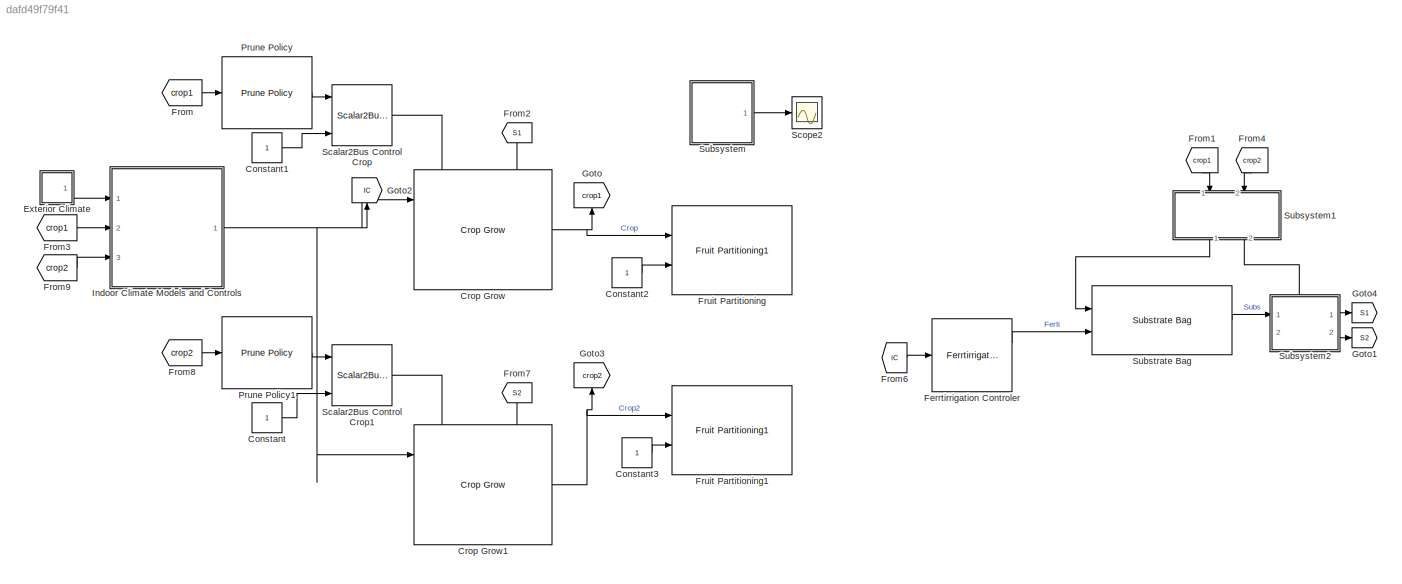
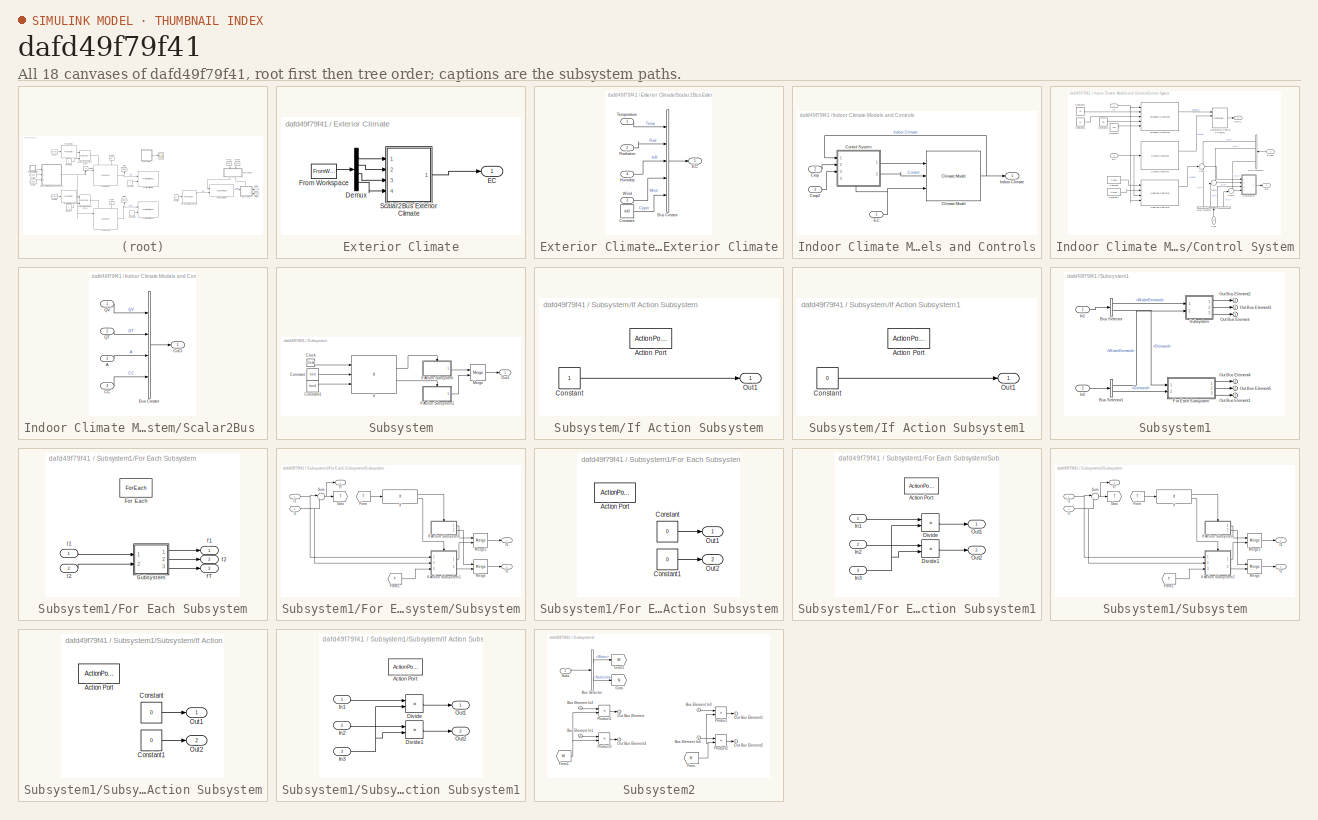
[diagram: thumbnail index - all 18 canvases of the model, root first then tree order]
MODEL slx_dafd49f79f41
KIND model
CONFIG AbsTol = auto
CONFIG EnableMultiTasking = off
CONFIG FixedStep = auto
CONFIG MaxStep = auto
CONFIG MinStep = auto
CONFIG RelTol = 1e-3
CONFIG SampleTimeConstraint = Unconstrained
CONFIG SolverName = ode23
CONFIG StartTime = 0.0
CONFIG StopTime = tspan(end)
BLOCK [Constant] Constant
BLOCK [Constant] Constant1
BLOCK [Constant] Constant2
BLOCK [Constant] Constant3
BLOCK [Reference] Crop Grow  REF=HORTISIM/Horticulture/Models/Crop Grow
  Ports = [3, 1]
  SourceBlock = HORTISIM/Horticulture/Models/Crop Grow
  SourceProductName = Horti Simulator
BLOCK [Reference] Crop Grow1  REF=HORTISIM/Horticulture/Models/Crop Grow
  Ports = [3, 1]
  SourceBlock = HORTISIM/Horticulture/Models/Crop Grow
  SourceProductName = Horti Simulator
BLOCK [SubSystem] Exterior Climate
  NameLocation = left
  Ports = [0, 1]
  RequestExecContextInheritance = off
BLOCK [Demux] Exterior Climate/Demux
  Ports = [1, 4]
BLOCK [Outport] Exterior Climate/EC
BLOCK [FromWorkspace] Exterior Climate/From Workspace
  VariableName = EC
BLOCK [SubSystem] Exterior Climate/Scalar2Bus Exterior Climate
  Ports = [4, 1]
  RequestExecContextInheritance = off
BLOCK [BusCreator] Exterior Climate/Scalar2Bus Exterior Climate/Bus Creator
  DisplayOption = bar
  InheritFromInputs = on
  Inputs = 5
  Ports = [5, 1]
BLOCK [Constant] Exterior Climate/Scalar2Bus Exterior Climate/Constant
  Value = 440
BLOCK [Outport] Exterior Climate/Scalar2Bus Exterior Climate/EC
BLOCK [Inport] Exterior Climate/Scalar2Bus Exterior Climate/Humidity
  Port = 4
BLOCK [Inport] Exterior Climate/Scalar2Bus Exterior Climate/Radiation
  Port = 2
BLOCK [Inport] Exterior Climate/Scalar2Bus Exterior Climate/Temperature
BLOCK [Inport] Exterior Climate/Scalar2Bus Exterior Climate/Wind
  Port = 3
BLOCK [Reference] Ferrtirrigation Controler  REF=HORTISIM/Horticulture/Controls/Ferrtirrigation
 Controler
  NameLocation = top
  Ports = [1, 2]
  SourceBlock = HORTISIM/Horticulture/Controls/Ferrtirrigation\n Controler
  SourceProductName = Horti Simulator
BLOCK [From] From
  GotoTag = crop1
BLOCK [From] From1
  GotoTag = crop1
  NameLocation = left
BLOCK [From] From2
  GotoTag = S1
  NameLocation = left
BLOCK [From] From3
  GotoTag = crop1
BLOCK [From] From4
  GotoTag = crop2
  NameLocation = left
BLOCK [From] From6
  GotoTag = IC
BLOCK [From] From7
  GotoTag = S2
  NameLocation = left
BLOCK [From] From8
  GotoTag = crop2
BLOCK [From] From9
  GotoTag = crop2
BLOCK [Reference] Fruit Partitioning  REF=HORTISIM/Horticulture/Models/Fruit Partitioning1
  Ports = [2, 1]
  SourceBlock = HORTISIM/Horticulture/Models/Fruit Partitioning1
  SourceProductName = Horti Simulator
BLOCK [Reference] Fruit Partitioning1  REF=HORTISIM/Horticulture/Models/Fruit Partitioning1
  Ports = [2, 1]
  SourceBlock = HORTISIM/Horticulture/Models/Fruit Partitioning1
  SourceProductName = Horti Simulator
BLOCK [Goto] Goto
  GotoTag = crop1
  NameLocation = right
BLOCK [Goto] Goto1
  GotoTag = S2
BLOCK [Goto] Goto2
  GotoTag = IC
  NameLocation = right
BLOCK [Goto] Goto3
  GotoTag = crop2
  NameLocation = right
BLOCK [Goto] Goto4
  GotoTag = S1
BLOCK [SubSystem] Indoor Climate Models and Controls
  Ports = [3, 1]
  RequestExecContextInheritance = off
BLOCK [Reference] Indoor Climate Models and Controls/Climate Model  REF=HORTISIM/Climate/Models/Climate Model
  Ports = [3, 1]
  SourceBlock = HORTISIM/Climate/Models/Climate Model
  SourceProductName = Horti Simulator
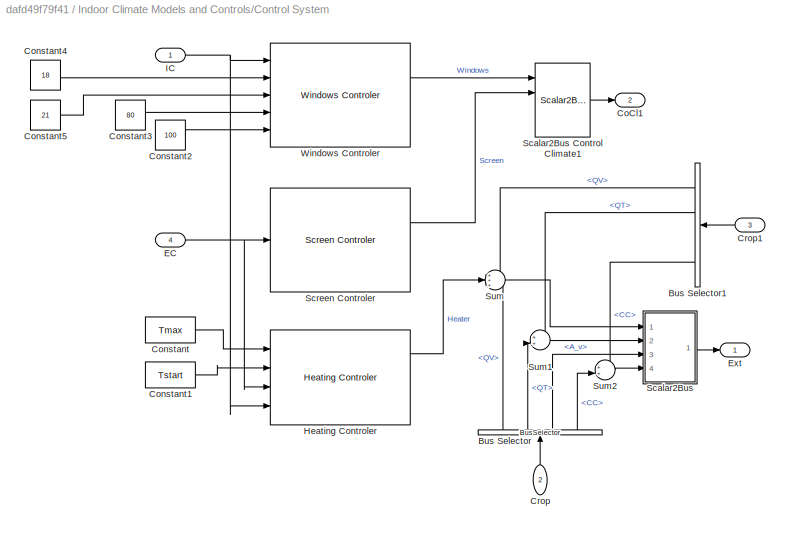
BLOCK [SubSystem] Indoor Climate Models and Controls/Control System
  NameLocation = top
  PortSchema = {"entries":[{"content":{"sides":[{"content":{"connectorIds":["In1","In2","In3"]},"type":"ConnectorPlacement.EquallySpacedRectSide","uuid":"7d0146e2-a53b-49ab-a7f4-04cd7ef00b9a"},{"content":{"connectorIds":["Out1","Out2"],"side":"RIGHT"},"type":"ConnectorPlacement.EquallySpacedRectSide","uuid":"fee587e2-4b5c-4140-8904-07609d427593"},{"content":{"connectorIds":[],"side":"TOP"},"type":"ConnectorPlace...<+408ch>
  Ports = [4, 2]
  RequestExecContextInheritance = off
BLOCK [BusSelector] Indoor Climate Models and Controls/Control System/Bus Selector
  NameLocation = right
  OutputSignals = HeatVars.QV,HeatVars.QT,A_v,CC
  Ports = [1, 4]
BLOCK [BusSelector] Indoor Climate Models and Controls/Control System/Bus Selector1
  NameLocation = top
  OutputSignals = HeatVars.QV,HeatVars.QT,A_v,CC
  Ports = [1, 4]
BLOCK [Outport] Indoor Climate Models and Controls/Control System/CoCl1
  Port = 2
BLOCK [Constant] Indoor Climate Models and Controls/Control System/Constant
  Value = Tmax
BLOCK [Constant] Indoor Climate Models and Controls/Control System/Constant1
  Value = Tstart
BLOCK [Constant] Indoor Climate Models and Controls/Control System/Constant2
  Value = 100
BLOCK [Constant] Indoor Climate Models and Controls/Control System/Constant3
  Value = 80
BLOCK [Constant] Indoor Climate Models and Controls/Control System/Constant4
  Value = 18
BLOCK [Constant] Indoor Climate Models and Controls/Control System/Constant5
  Value = 21
BLOCK [Inport] Indoor Climate Models and Controls/Control System/Crop
  NameLocation = right
  Port = 2
BLOCK [Inport] Indoor Climate Models and Controls/Control System/Crop1
  NameLocation = top
  Port = 3
BLOCK [Inport] Indoor Climate Models and Controls/Control System/EC
  Port = 4
BLOCK [Outport] Indoor Climate Models and Controls/Control System/Ext
BLOCK [Reference] Indoor Climate Models and Controls/Control System/Heating Controler  REF=HORTISIM/Climate/Controls/Heating Controler
  NameLocation = top
  Ports = [4, 3]
  SourceBlock = HORTISIM/Climate/Controls/Heating Controler
  SourceProductName = Horti Simulator
BLOCK [Inport] Indoor Climate Models and Controls/Control System/IC
BLOCK [SubSystem] Indoor Climate Models and Controls/Control System/Scalar2Bus 
  Ports = [4, 1]
  RequestExecContextInheritance = off
BLOCK [Inport] Indoor Climate Models and Controls/Control System/Scalar2Bus /A
  Port = 3
BLOCK [BusCreator] Indoor Climate Models and Controls/Control System/Scalar2Bus /Bus Creator
  DisplayOption = bar
  InheritFromInputs = on
  Inputs = 4
  Ports = [4, 1]
BLOCK [Inport] Indoor Climate Models and Controls/Control System/Scalar2Bus /CC
  Port = 4
BLOCK [Outport] Indoor Climate Models and Controls/Control System/Scalar2Bus /CoCl
BLOCK [Inport] Indoor Climate Models and Controls/Control System/Scalar2Bus /QT
  Port = 2
BLOCK [Inport] Indoor Climate Models and Controls/Control System/Scalar2Bus /QV
BLOCK [Reference] Indoor Climate Models and Controls/Control System/Scalar2Bus Control Climate1  REF=HORTISIM/Other 
Functions/Scalar2Bus 
Control Climate
  Ports = [4, 1]
  SourceBlock = HORTISIM/Other \nFunctions/Scalar2Bus \nControl Climate
  SourceProductName = Horti Simulator
  SourceType = SubSystem
BLOCK [Reference] Indoor Climate Models and Controls/Control System/Screen Controler  REF=HORTISIM/Climate/Controls/Screen Controler
  NameLocation = top
  Ports = [1, 2]
  SourceBlock = HORTISIM/Climate/Controls/Screen Controler
  SourceProductName = Horti Simulator
BLOCK [Sum] Indoor Climate Models and Controls/Control System/Sum
  Inputs = +++
  Ports = [3, 1]
BLOCK [Sum] Indoor Climate Models and Controls/Control System/Sum1
  Inputs = ++|
  Ports = [2, 1]
BLOCK [Sum] Indoor Climate Models and Controls/Control System/Sum2
  Inputs = ++|
  Ports = [2, 1]
BLOCK [Reference] Indoor Climate Models and Controls/Control System/Windows Controler  REF=HORTISIM/Climate/Controls/Windows Controler
  NameLocation = top
  Ports = [5, 2]
  SourceBlock = HORTISIM/Climate/Controls/Windows Controler
  SourceProductName = Horti Simulator
BLOCK [Inport] Indoor Climate Models and Controls/Crop
  Port = 2
BLOCK [Inport] Indoor Climate Models and Controls/Crop2
  Port = 3
BLOCK [Inport] Indoor Climate Models and Controls/EC
BLOCK [Outport] Indoor Climate Models and Controls/Indoor Climate
BLOCK [Reference] Prune Policy  REF=HORTISIM/Horticulture/Controls/Prune
Policy
  Ports = [1, 1]
  SourceBlock = HORTISIM/Horticulture/Controls/Prune\nPolicy
  SourceProductName = Horti Simulator
BLOCK [Reference] Prune Policy1  REF=HORTISIM/Horticulture/Controls/Prune
Policy
  Ports = [1, 1]
  SourceBlock = HORTISIM/Horticulture/Controls/Prune\nPolicy
  SourceProductName = Horti Simulator
BLOCK [Reference] Scalar2Bus Control Crop  REF=HORTISIM/Other 
Functions/Scalar2Bus
Control Crop
  Ports = [4, 1]
  SourceBlock = HORTISIM/Other \nFunctions/Scalar2Bus\nControl Crop
  SourceProductName = Horti Simulator
  SourceType = SubSystem
BLOCK [Reference] Scalar2Bus Control Crop1  REF=HORTISIM/Other 
Functions/Scalar2Bus
Control Crop
  Ports = [4, 1]
  SourceBlock = HORTISIM/Other \nFunctions/Scalar2Bus\nControl Crop
  SourceProductName = Horti Simulator
  SourceType = SubSystem
BLOCK [Scope] Scope2
  Floating = off
  NumInputPorts = 1
  Ports = [1]
  ScopeSpecificationString = Simulink.scopes.TimeScopeBlockCfg('CurrentConfiguration', extmgr.ConfigurationSet(extmgr.Configuration('Core','General UI',true),extmgr.Configuration('Core','Source UI',true),extmgr.Configuration('Sources','WiredSimulink',true,'DataLoggingVariableName','ScopeData1'),extmgr.Configuration('Visuals','Time Domain',true,'SerializedDisplays',{struct('MinYLimReal','-0.125','MaxYLimReal','1.125','YLabelRe...<+1385ch>
BLOCK [Reference] Substrate Bag  REF=HORTISIM/Horticulture/Models/Substrate Bag
  Ports = [2, 1]
  SourceBlock = HORTISIM/Horticulture/Models/Substrate Bag
  SourceProductName = Horti Simulator
BLOCK [SubSystem] Subsystem
  Ports = [0, 1]
  RequestExecContextInheritance = off
BLOCK [Clock] Subsystem/Clock
BLOCK [Constant] Subsystem/Constant
  Value = tinit
BLOCK [Constant] Subsystem/Constant1
  Value = tend
BLOCK [If] Subsystem/If
  IfExpression = (u1>u2)&(u1<u3)
  NumInputs = 3
  Ports = [3, 2]
BLOCK [SubSystem] Subsystem/If Action Subsystem
  Ports = [0, 1, 0, 0, 0, 0, 0, 1]
  RequestExecContextInheritance = off
  TreatAsAtomicUnit = on
BLOCK [ActionPort] Subsystem/If Action Subsystem/Action Port
  ActionPortLabel = if((u1>u2)&(u1<u3))
BLOCK [Constant] Subsystem/If Action Subsystem/Constant
BLOCK [Outport] Subsystem/If Action Subsystem/Out1
BLOCK [SubSystem] Subsystem/If Action Subsystem1
  Ports = [0, 1, 0, 0, 0, 0, 0, 1]
  RequestExecContextInheritance = off
  TreatAsAtomicUnit = on
BLOCK [ActionPort] Subsystem/If Action Subsystem1/Action Port
  ActionPortLabel = else
BLOCK [Constant] Subsystem/If Action Subsystem1/Constant
  Value = 0
BLOCK [Outport] Subsystem/If Action Subsystem1/Out1
BLOCK [Merge] Subsystem/Merge
  Ports = [2, 1]
BLOCK [Outport] Subsystem/Out1
BLOCK [SubSystem] Subsystem1
  NameLocation = left
  Ports = [2, 2]
  RequestExecContextInheritance = off
BLOCK [BusSelector] Subsystem1/Bus Selector
  OutputSignals = Water.WaterFlows.WaterDemand,Nutrients.Demand
  Ports = [1, 2]
BLOCK [BusSelector] Subsystem1/Bus Selector1
  OutputSignals = Water.WaterFlows.WaterDemand,Nutrients.Demand
  Ports = [1, 2]
BLOCK [SubSystem] Subsystem1/For Each Subsystem
  Ports = [2, 3]
  RequestExecContextInheritance = off
  TreatAsAtomicUnit = on
BLOCK [ForEach] Subsystem1/For Each Subsystem/For Each
  DisableCoverage = on
  Ports = []
BLOCK [Inport] Subsystem1/For Each Subsystem/I1
  Partition = on
  PartitionDimension = 1
  PartitionOffset = 0
  PartitionWidth = 1
BLOCK [Inport] Subsystem1/For Each Subsystem/I2
  Partition = on
  PartitionDimension = 1
  PartitionOffset = 0
  PartitionWidth = 1
  Port = 2
BLOCK [SubSystem] Subsystem1/For Each Subsystem/Subsystem
  Ports = [2, 3]
  RequestExecContextInheritance = off
BLOCK [From] Subsystem1/For Each Subsystem/Subsystem/From
  GotoTag = T
BLOCK [From] Subsystem1/For Each Subsystem/Subsystem/From1
  GotoTag = T
BLOCK [Goto] Subsystem1/For Each Subsystem/Subsystem/Goto
  GotoTag = T
BLOCK [Inport] Subsystem1/For Each Subsystem/Subsystem/I1
BLOCK [Inport] Subsystem1/For Each Subsystem/Subsystem/I2
  Port = 2
BLOCK [If] Subsystem1/For Each Subsystem/Subsystem/If
  IfExpression = u1 == 0
  Ports = [1, 2]
BLOCK [SubSystem] Subsystem1/For Each Subsystem/Subsystem/If Action Subsystem
  Ports = [0, 2, 0, 0, 0, 0, 0, 1]
  RequestExecContextInheritance = off
  TreatAsAtomicUnit = on
BLOCK [ActionPort] Subsystem1/For Each Subsystem/Subsystem/If Action Subsystem/Action Port
  ActionPortLabel = if(u1 == 0)
BLOCK [Constant] Subsystem1/For Each Subsystem/Subsystem/If Action Subsystem/Constant
  Value = 0
BLOCK [Constant] Subsystem1/For Each Subsystem/Subsystem/If Action Subsystem/Constant1
  Value = 0
BLOCK [Outport] Subsystem1/For Each Subsystem/Subsystem/If Action Subsystem/Out1
BLOCK [Outport] Subsystem1/For Each Subsystem/Subsystem/If Action Subsystem/Out2
  Port = 2
BLOCK [SubSystem] Subsystem1/For Each Subsystem/Subsystem/If Action Subsystem1
  Ports = [3, 2, 0, 0, 0, 0, 0, 1]
  RequestExecContextInheritance = off
  TreatAsAtomicUnit = on
BLOCK [ActionPort] Subsystem1/For Each Subsystem/Subsystem/If Action Subsystem1/Action Port
  ActionPortLabel = else
BLOCK [Product] Subsystem1/For Each Subsystem/Subsystem/If Action Subsystem1/Divide
  Inputs = */
  Ports = [2, 1]
BLOCK [Product] Subsystem1/For Each Subsystem/Subsystem/If Action Subsystem1/Divide1
  Inputs = */
  Ports = [2, 1]
BLOCK [Inport] Subsystem1/For Each Subsystem/Subsystem/If Action Subsystem1/In1
BLOCK [Inport] Subsystem1/For Each Subsystem/Subsystem/If Action Subsystem1/In2
  Port = 2
BLOCK [Inport] Subsystem1/For Each Subsystem/Subsystem/If Action Subsystem1/In3
  Port = 3
BLOCK [Outport] Subsystem1/For Each Subsystem/Subsystem/If Action Subsystem1/Out1
BLOCK [Outport] Subsystem1/For Each Subsystem/Subsystem/If Action Subsystem1/Out2
  Port = 2
BLOCK [Merge] Subsystem1/For Each Subsystem/Subsystem/Merge
  Ports = [2, 1]
BLOCK [Merge] Subsystem1/For Each Subsystem/Subsystem/Merge1
  Ports = [2, 1]
BLOCK [Sum] Subsystem1/For Each Subsystem/Subsystem/Sum
  Inputs = |++
  Ports = [2, 1]
BLOCK [Outport] Subsystem1/For Each Subsystem/Subsystem/f1
BLOCK [Outport] Subsystem1/For Each Subsystem/Subsystem/f2
  Port = 2
BLOCK [Outport] Subsystem1/For Each Subsystem/Subsystem/fT
  Port = 3
BLOCK [Outport] Subsystem1/For Each Subsystem/f1
  ConcatenationDimension = 1
BLOCK [Outport] Subsystem1/For Each Subsystem/f2
  ConcatenationDimension = 1
  Port = 2
BLOCK [Outport] Subsystem1/For Each Subsystem/fT
  ConcatenationDimension = 1
  Port = 3
BLOCK [Inport] Subsystem1/In1
BLOCK [Inport] Subsystem1/In2
  Port = 2
BLOCK [Outport] Subsystem1/Out Bus Element
BLOCK [Outport] Subsystem1/Out Bus Element1
BLOCK [Outport] Subsystem1/Out Bus Element2
  Port = 2
BLOCK [Outport] Subsystem1/Out Bus Element3
  Port = 2
BLOCK [Outport] Subsystem1/Out Bus Element4
  Port = 2
BLOCK [Outport] Subsystem1/Out Bus Element5
  Port = 2
BLOCK [SubSystem] Subsystem1/Subsystem
  Ports = [2, 3]
  RequestExecContextInheritance = off
BLOCK [From] Subsystem1/Subsystem/From
  GotoTag = T
BLOCK [From] Subsystem1/Subsystem/From1
  GotoTag = T
BLOCK [Goto] Subsystem1/Subsystem/Goto
  GotoTag = T
BLOCK [Inport] Subsystem1/Subsystem/I1
BLOCK [Inport] Subsystem1/Subsystem/I2
  Port = 2
BLOCK [If] Subsystem1/Subsystem/If
  IfExpression = u1 == 0
  Ports = [1, 2]
BLOCK [SubSystem] Subsystem1/Subsystem/If Action Subsystem
  Ports = [0, 2, 0, 0, 0, 0, 0, 1]
  RequestExecContextInheritance = off
  TreatAsAtomicUnit = on
BLOCK [ActionPort] Subsystem1/Subsystem/If Action Subsystem/Action Port
  ActionPortLabel = if(u1 == 0)
BLOCK [Constant] Subsystem1/Subsystem/If Action Subsystem/Constant
  Value = 0
BLOCK [Constant] Subsystem1/Subsystem/If Action Subsystem/Constant1
  Value = 0
BLOCK [Outport] Subsystem1/Subsystem/If Action Subsystem/Out1
BLOCK [Outport] Subsystem1/Subsystem/If Action Subsystem/Out2
  Port = 2
BLOCK [SubSystem] Subsystem1/Subsystem/If Action Subsystem1
  Ports = [3, 2, 0, 0, 0, 0, 0, 1]
  RequestExecContextInheritance = off
  TreatAsAtomicUnit = on
BLOCK [ActionPort] Subsystem1/Subsystem/If Action Subsystem1/Action Port
  ActionPortLabel = else
BLOCK [Product] Subsystem1/Subsystem/If Action Subsystem1/Divide
  Inputs = */
  Ports = [2, 1]
BLOCK [Product] Subsystem1/Subsystem/If Action Subsystem1/Divide1
  Inputs = */
  Ports = [2, 1]
BLOCK [Inport] Subsystem1/Subsystem/If Action Subsystem1/In1
BLOCK [Inport] Subsystem1/Subsystem/If Action Subsystem1/In2
  Port = 2
BLOCK [Inport] Subsystem1/Subsystem/If Action Subsystem1/In3
  Port = 3
BLOCK [Outport] Subsystem1/Subsystem/If Action Subsystem1/Out1
BLOCK [Outport] Subsystem1/Subsystem/If Action Subsystem1/Out2
  Port = 2
BLOCK [Merge] Subsystem1/Subsystem/Merge
  Ports = [2, 1]
BLOCK [Merge] Subsystem1/Subsystem/Merge1
  Ports = [2, 1]
BLOCK [Sum] Subsystem1/Subsystem/Sum
  Inputs = |++
  Ports = [2, 1]
BLOCK [Outport] Subsystem1/Subsystem/f1
BLOCK [Outport] Subsystem1/Subsystem/f2
  Port = 2
BLOCK [Outport] Subsystem1/Subsystem/fT
  Port = 3
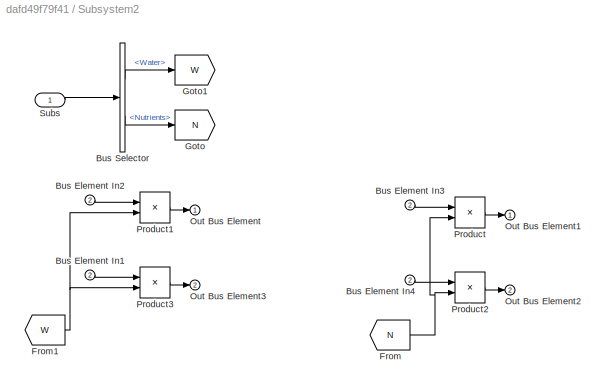
BLOCK [SubSystem] Subsystem2
  PortSchema = {"entries":[{"content":{"sides":[{"content":{"connectorIds":["In1"]},"type":"ConnectorPlacement.EquallySpacedRectSide","uuid":"526c2ba0-7984-4a67-b75e-815cf79b4473"},{"content":{"connectorIds":["Out1","Out2"],"side":"RIGHT"},"type":"ConnectorPlacement.EquallySpacedRectSide","uuid":"1f428ce7-4be7-4b4c-9b6b-ebbf12a2ebe7"},{"content":{"connectorIds":["In2"],"side":"TOP"},"type":"ConnectorPlacement.Eq...<+252ch>
  Ports = [2, 2]
  RequestExecContextInheritance = off
BLOCK [Inport] Subsystem2/Bus Element In1
  Port = 2
BLOCK [Inport] Subsystem2/Bus Element In2
  Port = 2
BLOCK [Inport] Subsystem2/Bus Element In3
  Port = 2
BLOCK [Inport] Subsystem2/Bus Element In4
  Port = 2
BLOCK [BusSelector] Subsystem2/Bus Selector
  OutputSignals = Uptake.Water,Uptake.Nutrients
  Ports = [1, 2]
BLOCK [From] Subsystem2/From
  GotoTag = N
BLOCK [From] Subsystem2/From1
  GotoTag = W
BLOCK [Goto] Subsystem2/Goto
  GotoTag = N
BLOCK [Goto] Subsystem2/Goto1
  GotoTag = W
BLOCK [Outport] Subsystem2/Out Bus Element
BLOCK [Outport] Subsystem2/Out Bus Element1
BLOCK [Outport] Subsystem2/Out Bus Element2
  Port = 2
BLOCK [Outport] Subsystem2/Out Bus Element3
  Port = 2
BLOCK [Product] Subsystem2/Product
  Ports = [2, 1]
BLOCK [Product] Subsystem2/Product1
  Ports = [2, 1]
BLOCK [Product] Subsystem2/Product2
  Ports = [2, 1]
BLOCK [Product] Subsystem2/Product3
  Ports = [2, 1]
BLOCK [Inport] Subsystem2/Subs
LINE Constant1:1 -> Scalar2Bus Control Crop:4
LINE Constant2:1 -> Fruit Partitioning:2
LINE Constant3:1 -> Fruit Partitioning1:2
LINE Constant:1 -> Scalar2Bus Control Crop1:4
NET Crop Grow1:1 -> Fruit Partitioning1:1, Goto3:1
NET Crop Grow:1 -> Fruit Partitioning:1, Goto:1
LINE Exterior Climate/Demux:1 -> Exterior Climate/Scalar2Bus Exterior Climate:1
LINE Exterior Climate/Demux:2 -> Exterior Climate/Scalar2Bus Exterior Climate:2
LINE Exterior Climate/Demux:3 -> Exterior Climate/Scalar2Bus Exterior Climate:3
LINE Exterior Climate/Demux:4 -> Exterior Climate/Scalar2Bus Exterior Climate:4
LINE Exterior Climate/From Workspace:1 -> Exterior Climate/Demux:1
LINE Exterior Climate/Scalar2Bus Exterior Climate/Bus Creator:1 -> Exterior Climate/Scalar2Bus Exterior Climate/EC:1
LINE Exterior Climate/Scalar2Bus Exterior Climate/Constant:1 -> Exterior Climate/Scalar2Bus Exterior Climate/Bus Creator:5
LINE Exterior Climate/Scalar2Bus Exterior Climate/Humidity:1 -> Exterior Climate/Scalar2Bus Exterior Climate/Bus Creator:3
LINE Exterior Climate/Scalar2Bus Exterior Climate/Radiation:1 -> Exterior Climate/Scalar2Bus Exterior Climate/Bus Creator:2
LINE Exterior Climate/Scalar2Bus Exterior Climate/Temperature:1 -> Exterior Climate/Scalar2Bus Exterior Climate/Bus Creator:1
LINE Exterior Climate/Scalar2Bus Exterior Climate/Wind:1 -> Exterior Climate/Scalar2Bus Exterior Climate/Bus Creator:4
LINE Exterior Climate/Scalar2Bus Exterior Climate:1 -> Exterior Climate/EC:1
LINE Exterior Climate:1 -> Indoor Climate Models and Controls:1
LINE Ferrtirrigation Controler:1 -> Substrate Bag:2
LINE From1:1 -> Subsystem1:1
LINE From2:1 -> Crop Grow:3
LINE From3:1 -> Indoor Climate Models and Controls:2
LINE From4:1 -> Subsystem1:2
LINE From6:1 -> Ferrtirrigation Controler:1
LINE From7:1 -> Crop Grow1:3
LINE From8:1 -> Prune Policy1:1
LINE From9:1 -> Indoor Climate Models and Controls:3
LINE From:1 -> Prune Policy:1
NET Indoor Climate Models and Controls/Climate Model:1 -> Indoor Climate Models and Controls/Control System:1, Indoor Climate Models and Controls/Indoor Climate:1
LINE Indoor Climate Models and Controls/Control System/Bus Selector1:1 -> Indoor Climate Models and Controls/Control System/Sum:1
LINE Indoor Climate Models and Controls/Control System/Bus Selector1:2 -> Indoor Climate Models and Controls/Control System/Sum1:1
LINE Indoor Climate Models and Controls/Control System/Bus Selector1:4 -> Indoor Climate Models and Controls/Control System/Sum2:1
LINE Indoor Climate Models and Controls/Control System/Bus Selector:1 -> Indoor Climate Models and Controls/Control System/Sum:3
LINE Indoor Climate Models and Controls/Control System/Bus Selector:2 -> Indoor Climate Models and Controls/Control System/Sum1:2
LINE Indoor Climate Models and Controls/Control System/Bus Selector:3 -> Indoor Climate Models and Controls/Control System/Scalar2Bus :3
LINE Indoor Climate Models and Controls/Control System/Bus Selector:4 -> Indoor Climate Models and Controls/Control System/Sum2:2
LINE Indoor Climate Models and Controls/Control System/Constant1:1 -> Indoor Climate Models and Controls/Control System/Heating Controler:2
LINE Indoor Climate Models and Controls/Control System/Constant2:1 -> Indoor Climate Models and Controls/Control System/Windows Controler:5
LINE Indoor Climate Models and Controls/Control System/Constant3:1 -> Indoor Climate Models and Controls/Control System/Windows Controler:4
LINE Indoor Climate Models and Controls/Control System/Constant4:1 -> Indoor Climate Models and Controls/Control System/Windows Controler:2
LINE Indoor Climate Models and Controls/Control System/Constant5:1 -> Indoor Climate Models and Controls/Control System/Windows Controler:3
LINE Indoor Climate Models and Controls/Control System/Constant:1 -> Indoor Climate Models and Controls/Control System/Heating Controler:1
LINE Indoor Climate Models and Controls/Control System/Crop1:1 -> Indoor Climate Models and Controls/Control System/Bus Selector1:1
LINE Indoor Climate Models and Controls/Control System/Crop:1 -> Indoor Climate Models and Controls/Control System/Bus Selector:1
NET Indoor Climate Models and Controls/Control System/EC:1 -> Indoor Climate Models and Controls/Control System/Heating Controler:3, Indoor Climate Models and Controls/Control System/Screen Controler:1
LINE Indoor Climate Models and Controls/Control System/Heating Controler:1 -> Indoor Climate Models and Controls/Control System/Sum:2
NET Indoor Climate Models and Controls/Control System/IC:1 -> Indoor Climate Models and Controls/Control System/Heating Controler:4, Indoor Climate Models and Controls/Control System/Windows Controler:1
LINE Indoor Climate Models and Controls/Control System/Scalar2Bus /A:1 -> Indoor Climate Models and Controls/Control System/Scalar2Bus /Bus Creator:3
LINE Indoor Climate Models and Controls/Control System/Scalar2Bus /Bus Creator:1 -> Indoor Climate Models and Controls/Control System/Scalar2Bus /CoCl:1
LINE Indoor Climate Models and Controls/Control System/Scalar2Bus /CC:1 -> Indoor Climate Models and Controls/Control System/Scalar2Bus /Bus Creator:4
LINE Indoor Climate Models and Controls/Control System/Scalar2Bus /QT:1 -> Indoor Climate Models and Controls/Control System/Scalar2Bus /Bus Creator:2
LINE Indoor Climate Models and Controls/Control System/Scalar2Bus /QV:1 -> Indoor Climate Models and Controls/Control System/Scalar2Bus /Bus Creator:1
LINE Indoor Climate Models and Controls/Control System/Scalar2Bus :1 -> Indoor Climate Models and Controls/Control System/Ext:1
LINE Indoor Climate Models and Controls/Control System/Scalar2Bus Control Climate1:1 -> Indoor Climate Models and Controls/Control System/CoCl1:1
LINE Indoor Climate Models and Controls/Control System/Screen Controler:1 -> Indoor Climate Models and Controls/Control System/Scalar2Bus Control Climate1:2
LINE Indoor Climate Models and Controls/Control System/Sum1:1 -> Indoor Climate Models and Controls/Control System/Scalar2Bus :2
LINE Indoor Climate Models and Controls/Control System/Sum2:1 -> Indoor Climate Models and Controls/Control System/Scalar2Bus :4
LINE Indoor Climate Models and Controls/Control System/Sum:1 -> Indoor Climate Models and Controls/Control System/Scalar2Bus :1
LINE Indoor Climate Models and Controls/Control System/Windows Controler:1 -> Indoor Climate Models and Controls/Control System/Scalar2Bus Control Climate1:1
LINE Indoor Climate Models and Controls/Control System:1 -> Indoor Climate Models and Controls/Climate Model:1
LINE Indoor Climate Models and Controls/Control System:2 -> Indoor Climate Models and Controls/Climate Model:2
LINE Indoor Climate Models and Controls/Crop2:1 -> Indoor Climate Models and Controls/Control System:3
LINE Indoor Climate Models and Controls/Crop:1 -> Indoor Climate Models and Controls/Control System:2
NET Indoor Climate Models and Controls/EC:1 -> Indoor Climate Models and Controls/Climate Model:3, Indoor Climate Models and Controls/Control System:4
NET Indoor Climate Models and Controls:1 -> Crop Grow1:1, Crop Grow:1, Goto2:1
LINE Prune Policy1:1 -> Scalar2Bus Control Crop1:1
LINE Prune Policy:1 -> Scalar2Bus Control Crop:1
LINE Scalar2Bus Control Crop1:1 -> Crop Grow1:2
LINE Scalar2Bus Control Crop:1 -> Crop Grow:2
LINE Substrate Bag:1 -> Subsystem2:1
LINE Subsystem/Clock:1 -> Subsystem/If:1
LINE Subsystem/Constant1:1 -> Subsystem/If:3
LINE Subsystem/Constant:1 -> Subsystem/If:2
LINE Subsystem/If Action Subsystem/Constant:1 -> Subsystem/If Action Subsystem/Out1:1
LINE Subsystem/If Action Subsystem1/Constant:1 -> Subsystem/If Action Subsystem1/Out1:1
LINE Subsystem/If Action Subsystem1:1 -> Subsystem/Merge:2
LINE Subsystem/If Action Subsystem:1 -> Subsystem/Merge:1
LINE Subsystem/If:1 -> Subsystem/If Action Subsystem:ifaction
LINE Subsystem/If:2 -> Subsystem/If Action Subsystem1:ifaction
LINE Subsystem/Merge:1 -> Subsystem/Out1:1
LINE Subsystem1/Bus Selector1:1 -> Subsystem1/Subsystem:2
LINE Subsystem1/Bus Selector1:2 -> Subsystem1/For Each Subsystem:2
LINE Subsystem1/Bus Selector:1 -> Subsystem1/Subsystem:1
LINE Subsystem1/Bus Selector:2 -> Subsystem1/For Each Subsystem:1
LINE Subsystem1/For Each Subsystem/I1:1 -> Subsystem1/For Each Subsystem/Subsystem:1
LINE Subsystem1/For Each Subsystem/I2:1 -> Subsystem1/For Each Subsystem/Subsystem:2
LINE Subsystem1/For Each Subsystem/Subsystem/From1:1 -> Subsystem1/For Each Subsystem/Subsystem/If Action Subsystem1:3
LINE Subsystem1/For Each Subsystem/Subsystem/From:1 -> Subsystem1/For Each Subsystem/Subsystem/If:1
NET Subsystem1/For Each Subsystem/Subsystem/I1:1 -> Subsystem1/For Each Subsystem/Subsystem/If Action Subsystem1:1, Subsystem1/For Each Subsystem/Subsystem/Sum:1
NET Subsystem1/For Each Subsystem/Subsystem/I2:1 -> Subsystem1/For Each Subsystem/Subsystem/If Action Subsystem1:2, Subsystem1/For Each Subsystem/Subsystem/Sum:2
LINE Subsystem1/For Each Subsystem/Subsystem/If Action Subsystem/Constant1:1 -> Subsystem1/For Each Subsystem/Subsystem/If Action Subsystem/Out2:1
LINE Subsystem1/For Each Subsystem/Subsystem/If Action Subsystem/Constant:1 -> Subsystem1/For Each Subsystem/Subsystem/If Action Subsystem/Out1:1
LINE Subsystem1/For Each Subsystem/Subsystem/If Action Subsystem1/Divide1:1 -> Subsystem1/For Each Subsystem/Subsystem/If Action Subsystem1/Out2:1
LINE Subsystem1/For Each Subsystem/Subsystem/If Action Subsystem1/Divide:1 -> Subsystem1/For Each Subsystem/Subsystem/If Action Subsystem1/Out1:1
LINE Subsystem1/For Each Subsystem/Subsystem/If Action Subsystem1/In1:1 -> Subsystem1/For Each Subsystem/Subsystem/If Action Subsystem1/Divide:1
LINE Subsystem1/For Each Subsystem/Subsystem/If Action Subsystem1/In2:1 -> Subsystem1/For Each Subsystem/Subsystem/If Action Subsystem1/Divide1:1
NET Subsystem1/For Each Subsystem/Subsystem/If Action Subsystem1/In3:1 -> Subsystem1/For Each Subsystem/Subsystem/If Action Subsystem1/Divide1:2, Subsystem1/For Each Subsystem/Subsystem/If Action Subsystem1/Divide:2
LINE Subsystem1/For Each Subsystem/Subsystem/If Action Subsystem1:1 -> Subsystem1/For Each Subsystem/Subsystem/Merge1:2
LINE Subsystem1/For Each Subsystem/Subsystem/If Action Subsystem1:2 -> Subsystem1/For Each Subsystem/Subsystem/Merge:2
LINE Subsystem1/For Each Subsystem/Subsystem/If Action Subsystem:1 -> Subsystem1/For Each Subsystem/Subsystem/Merge1:1
LINE Subsystem1/For Each Subsystem/Subsystem/If Action Subsystem:2 -> Subsystem1/For Each Subsystem/Subsystem/Merge:1
LINE Subsystem1/For Each Subsystem/Subsystem/If:1 -> Subsystem1/For Each Subsystem/Subsystem/If Action Subsystem:ifaction
LINE Subsystem1/For Each Subsystem/Subsystem/If:2 -> Subsystem1/For Each Subsystem/Subsystem/If Action Subsystem1:ifaction
LINE Subsystem1/For Each Subsystem/Subsystem/Merge1:1 -> Subsystem1/For Each Subsystem/Subsystem/f1:1
LINE Subsystem1/For Each Subsystem/Subsystem/Merge:1 -> Subsystem1/For Each Subsystem/Subsystem/f2:1
NET Subsystem1/For Each Subsystem/Subsystem/Sum:1 -> Subsystem1/For Each Subsystem/Subsystem/Goto:1, Subsystem1/For Each Subsystem/Subsystem/fT:1
LINE Subsystem1/For Each Subsystem/Subsystem:1 -> Subsystem1/For Each Subsystem/f1:1
LINE Subsystem1/For Each Subsystem/Subsystem:2 -> Subsystem1/For Each Subsystem/f2:1
LINE Subsystem1/For Each Subsystem/Subsystem:3 -> Subsystem1/For Each Subsystem/fT:1
LINE Subsystem1/For Each Subsystem:1 -> Subsystem1/Out Bus Element4:1
LINE Subsystem1/For Each Subsystem:2 -> Subsystem1/Out Bus Element5:1
LINE Subsystem1/For Each Subsystem:3 -> Subsystem1/Out Bus Element1:1
LINE Subsystem1/In1:1 -> Subsystem1/Bus Selector:1
LINE Subsystem1/In2:1 -> Subsystem1/Bus Selector1:1
LINE Subsystem1/Subsystem/From1:1 -> Subsystem1/Subsystem/If Action Subsystem1:3
LINE Subsystem1/Subsystem/From:1 -> Subsystem1/Subsystem/If:1
NET Subsystem1/Subsystem/I1:1 -> Subsystem1/Subsystem/If Action Subsystem1:1, Subsystem1/Subsystem/Sum:1
NET Subsystem1/Subsystem/I2:1 -> Subsystem1/Subsystem/If Action Subsystem1:2, Subsystem1/Subsystem/Sum:2
LINE Subsystem1/Subsystem/If Action Subsystem/Constant1:1 -> Subsystem1/Subsystem/If Action Subsystem/Out2:1
LINE Subsystem1/Subsystem/If Action Subsystem/Constant:1 -> Subsystem1/Subsystem/If Action Subsystem/Out1:1
LINE Subsystem1/Subsystem/If Action Subsystem1/Divide1:1 -> Subsystem1/Subsystem/If Action Subsystem1/Out2:1
LINE Subsystem1/Subsystem/If Action Subsystem1/Divide:1 -> Subsystem1/Subsystem/If Action Subsystem1/Out1:1
LINE Subsystem1/Subsystem/If Action Subsystem1/In1:1 -> Subsystem1/Subsystem/If Action Subsystem1/Divide:1
LINE Subsystem1/Subsystem/If Action Subsystem1/In2:1 -> Subsystem1/Subsystem/If Action Subsystem1/Divide1:1
NET Subsystem1/Subsystem/If Action Subsystem1/In3:1 -> Subsystem1/Subsystem/If Action Subsystem1/Divide1:2, Subsystem1/Subsystem/If Action Subsystem1/Divide:2
LINE Subsystem1/Subsystem/If Action Subsystem1:1 -> Subsystem1/Subsystem/Merge1:2
LINE Subsystem1/Subsystem/If Action Subsystem1:2 -> Subsystem1/Subsystem/Merge:2
LINE Subsystem1/Subsystem/If Action Subsystem:1 -> Subsystem1/Subsystem/Merge1:1
LINE Subsystem1/Subsystem/If Action Subsystem:2 -> Subsystem1/Subsystem/Merge:1
LINE Subsystem1/Subsystem/If:1 -> Subsystem1/Subsystem/If Action Subsystem:ifaction
LINE Subsystem1/Subsystem/If:2 -> Subsystem1/Subsystem/If Action Subsystem1:ifaction
LINE Subsystem1/Subsystem/Merge1:1 -> Subsystem1/Subsystem/f1:1
LINE Subsystem1/Subsystem/Merge:1 -> Subsystem1/Subsystem/f2:1
NET Subsystem1/Subsystem/Sum:1 -> Subsystem1/Subsystem/Goto:1, Subsystem1/Subsystem/fT:1
LINE Subsystem1/Subsystem:1 -> Subsystem1/Out Bus Element2:1
LINE Subsystem1/Subsystem:2 -> Subsystem1/Out Bus Element3:1
LINE Subsystem1/Subsystem:3 -> Subsystem1/Out Bus Element:1
LINE Subsystem1:1 -> Substrate Bag:1
LINE Subsystem1:2 -> Subsystem2:2
LINE Subsystem2/Bus Element In1:1 -> Subsystem2/Product3:1
LINE Subsystem2/Bus Element In2:1 -> Subsystem2/Product1:1
LINE Subsystem2/Bus Element In3:1 -> Subsystem2/Product:1
LINE Subsystem2/Bus Element In4:1 -> Subsystem2/Product2:1
LINE Subsystem2/Bus Selector:1 -> Subsystem2/Goto1:1
LINE Subsystem2/Bus Selector:2 -> Subsystem2/Goto:1
NET Subsystem2/From1:1 -> Subsystem2/Product1:2, Subsystem2/Product3:2
NET Subsystem2/From:1 -> Subsystem2/Product2:2, Subsystem2/Product:2
LINE Subsystem2/Product1:1 -> Subsystem2/Out Bus Element:1
LINE Subsystem2/Product2:1 -> Subsystem2/Out Bus Element2:1
LINE Subsystem2/Product3:1 -> Subsystem2/Out Bus Element3:1
LINE Subsystem2/Product:1 -> Subsystem2/Out Bus Element1:1
LINE Subsystem2/Subs:1 -> Subsystem2/Bus Selector:1
LINE Subsystem2:1 -> Goto4:1
LINE Subsystem2:2 -> Goto1:1
LINE Subsystem:1 -> Scope2:1
note: NET lines group one-source signal fan-out (src -> all destinations, sorted); 1:1 wires keep LINE
